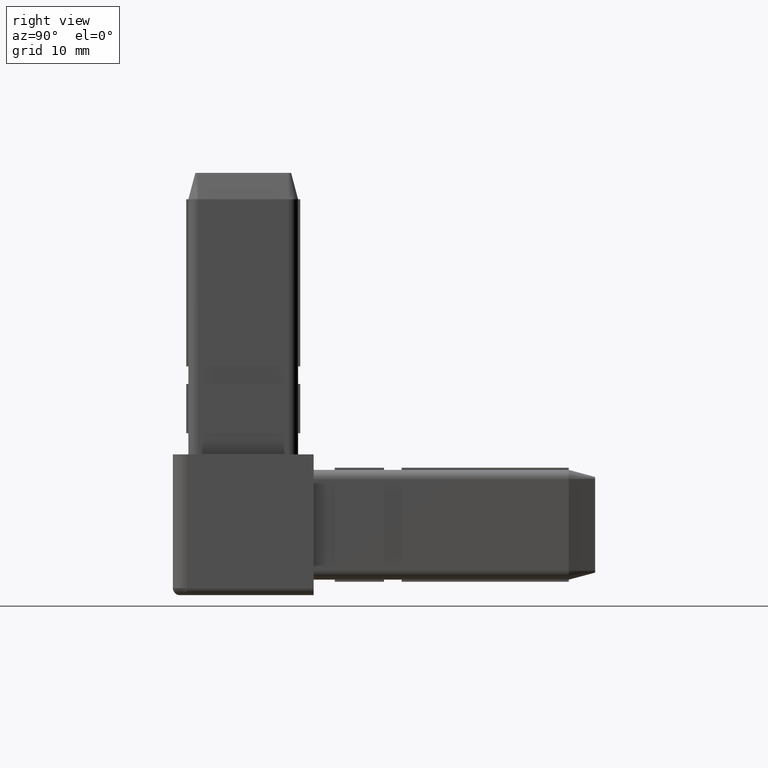
[diagram: clean part render]
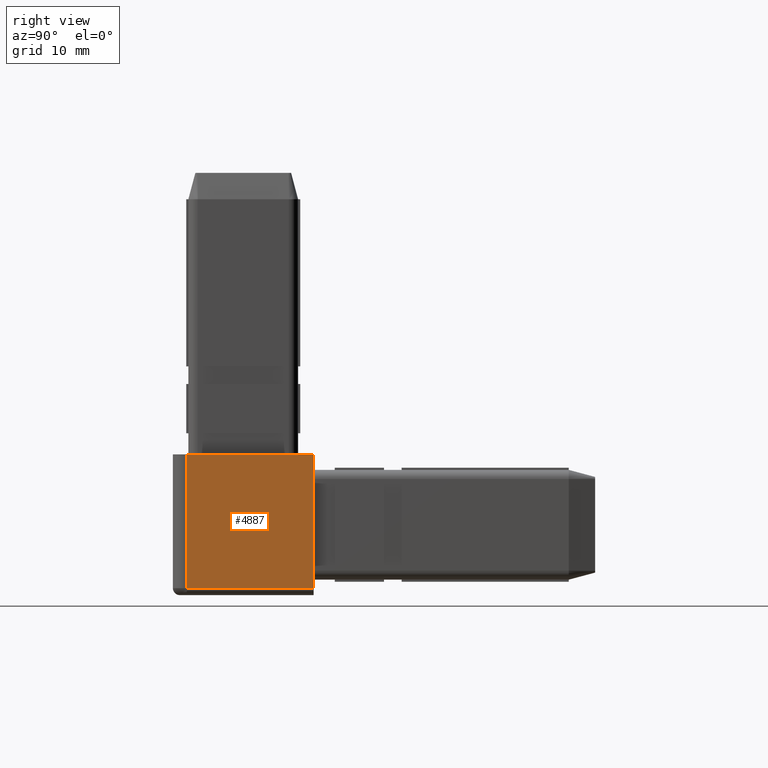
[diagram: same view with one face highlighted and labeled with its STEP entity id]
A machine part, right view. The second image highlights one B-rep face of the part: STEP entity #4887.
In plain terms, the highlighted planar face has unit normal (1, 0, 0).
Its self-contained STEP definition (entity closure, byte-faithful):
#7=CARTESIAN_POINT('',(20.0,0.0,10.0));
#8=VERTEX_POINT('',#7);
#42=CARTESIAN_POINT('',(20.0,-18.0,10.0));
#43=VERTEX_POINT('',#42);
#51=CARTESIAN_POINT('',(20.0,-18.0,10.0));
#52=DIRECTION('',(0.0,1.0,0.0));
#53=VECTOR('',#52,18.0);
#54=LINE('',#51,#53);
#55=EDGE_CURVE('',#43,#8,#54,.T.);
#4744=CARTESIAN_POINT('',(20.0,0.0,-9.0));
#4745=VERTEX_POINT('',#4744);
#4746=CARTESIAN_POINT('',(20.0,0.0,-9.0));
#4747=DIRECTION('',(0.0,0.0,1.0));
#4748=VECTOR('',#4747,19.0);
#4749=LINE('',#4746,#4748);
#4750=EDGE_CURVE('',#4745,#8,#4749,.T.);
#4777=CARTESIAN_POINT('',(20.0,-18.0,-9.0));
#4778=VERTEX_POINT('',#4777);
#4795=CARTESIAN_POINT('',(20.0,-18.0,-9.0));
#4796=DIRECTION('',(0.0,1.0,0.0));
#4797=VECTOR('',#4796,18.0);
#4798=LINE('',#4795,#4797);
#4799=EDGE_CURVE('',#4778,#4745,#4798,.T.);
#4871=CARTESIAN_POINT('',(20.0,-18.0,-10.0));
#4872=DIRECTION('',(1.0,0.0,0.0));
#4873=DIRECTION('',(0.0,1.0,0.0));
#4874=AXIS2_PLACEMENT_3D('',#4871,#4872,#4873);
#4875=PLANE('',#4874);
#4876=ORIENTED_EDGE('',*,*,#55,.F.);
#4877=CARTESIAN_POINT('',(20.0,-18.0,-9.0));
#4878=DIRECTION('',(0.0,0.0,1.0));
#4879=VECTOR('',#4878,19.0);
#4880=LINE('',#4877,#4879);
#4881=EDGE_CURVE('',#4778,#43,#4880,.T.);
#4882=ORIENTED_EDGE('',*,*,#4881,.F.);
#4883=ORIENTED_EDGE('',*,*,#4799,.T.);
#4884=ORIENTED_EDGE('',*,*,#4750,.T.);
#4885=EDGE_LOOP('',(#4876,#4882,#4883,#4884));
#4886=FACE_OUTER_BOUND('',#4885,.T.);
#4887=ADVANCED_FACE('',(#4886),#4875,.T.);